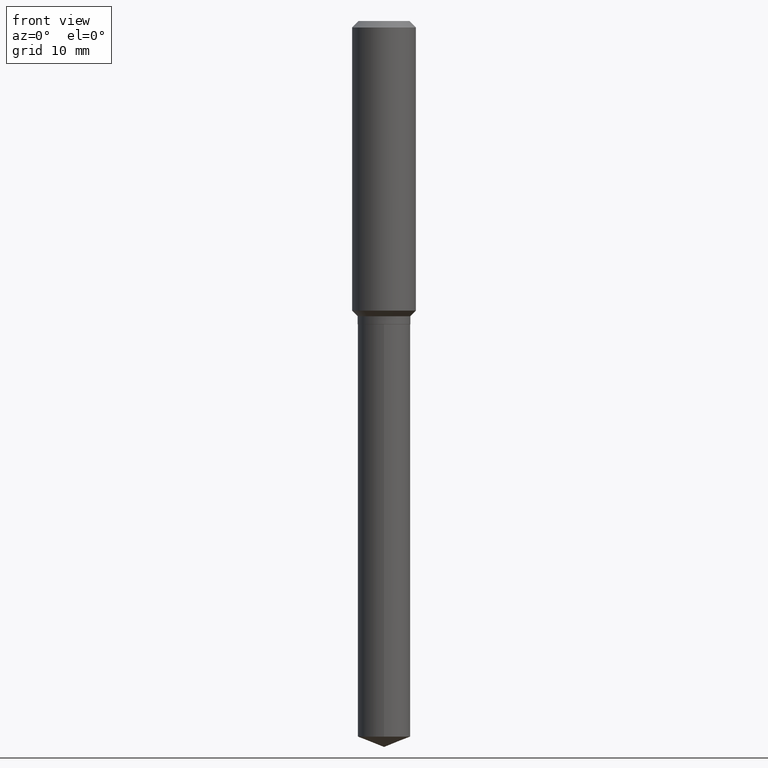
[diagram: clean part render]
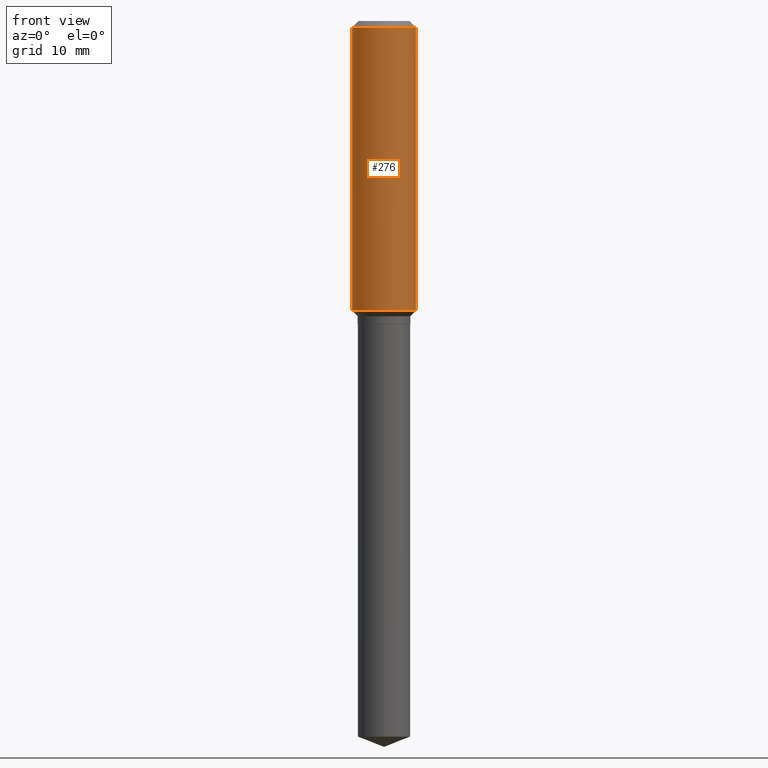
[diagram: same view with one face highlighted and labeled with its STEP entity id]
A machine part, front view. The second image highlights one B-rep face of the part: STEP entity #276.
In plain terms, the highlighted cylindrical surface (edge-blend (fillet) strip) has radius 4.0005 mm, axis along (-0, 0, 1).
Its self-contained STEP definition (entity closure, byte-faithful):
#14 = DIRECTION ( 'NONE',  ( -2.445468806185136597E-29, 3.491481338843145583E-15, 1.000000000000000000 ) ) ;
#85 = ORIENTED_EDGE ( 'NONE', *, *, #172, .F. ) ;
#94 = VERTEX_POINT ( 'NONE', #297 ) ;
#127 = CIRCLE ( 'NONE', #260, 0.1575000000000000011 ) ;
#152 = VECTOR ( 'NONE', #237, 39.37007874015748143 ) ;
#161 = CARTESIAN_POINT ( 'NONE',  ( 0.1575000000000001676, -6.090540047477979887E-15, -1.429400000000000004 ) ) ;
#172 = EDGE_CURVE ( 'NONE', #236, #420, #264, .T. ) ;
#176 = CIRCLE ( 'NONE', #218, 0.1575000000000001676 ) ;
#187 = CARTESIAN_POINT ( 'NONE',  ( 7.703226739483228723E-31, -1.099816621735597661E-16, -0.03150000000000019451 ) ) ;
#190 = CARTESIAN_POINT ( 'NONE',  ( -0.1575000000000000844, 1.119104808822158392E-15, -7.747322767151481189E-30 ) ) ;
#194 = EDGE_LOOP ( 'NONE', ( #85, #241, #275, #409 ) ) ;
#202 = EDGE_CURVE ( 'NONE', #420, #94, #127, .T. ) ;
#218 = AXIS2_PLACEMENT_3D ( 'NONE', #365, #14, #240 ) ;
#236 = VERTEX_POINT ( 'NONE', #376 ) ;
#237 = DIRECTION ( 'NONE',  ( -2.445468806185136877E-29, 3.491481338843145188E-15, 1.000000000000000000 ) ) ;
#240 = DIRECTION ( 'NONE',  ( 1.000000000000000000, -6.982962677686267499E-15, 0.000000000000000000 ) ) ;
#241 = ORIENTED_EDGE ( 'NONE', *, *, #344, .T. ) ;
#260 = AXIS2_PLACEMENT_3D ( 'NONE', #187, #310, #477 ) ;
#264 = LINE ( 'NONE', #190, #487 ) ;
#275 = ORIENTED_EDGE ( 'NONE', *, *, #299, .T. ) ;
#276 = ADVANCED_FACE ( 'NONE', ( #388 ), #395, .T. ) ;
#278 = VERTEX_POINT ( 'NONE', #161 ) ;
#279 = LINE ( 'NONE', #326, #152 ) ;
#297 = CARTESIAN_POINT ( 'NONE',  ( 0.1575000000000000011, -1.209798283909146741E-15, -0.03150000000000019451 ) ) ;
#299 = EDGE_CURVE ( 'NONE', #278, #94, #279, .T. ) ;
#310 = DIRECTION ( 'NONE',  ( -2.445468806185136597E-29, 3.491481338843145583E-15, 1.000000000000000000 ) ) ;
#326 = CARTESIAN_POINT ( 'NONE',  ( 0.1575000000000000844, -1.099816621735587677E-15, 7.679978421878603638E-30 ) ) ;
#344 = EDGE_CURVE ( 'NONE', #236, #278, #176, .T. ) ;
#349 = DIRECTION ( 'NONE',  ( -2.445468806185136877E-29, 3.491481338843145188E-15, 1.000000000000000000 ) ) ;
#364 = CARTESIAN_POINT ( 'NONE',  ( -0.1575000000000000011, -1.431247735135817737E-15, -0.03150000000000019451 ) ) ;
#365 = CARTESIAN_POINT ( 'NONE',  ( 3.495553111561034173E-29, -4.990723425742393195E-15, -1.429400000000000004 ) ) ;
#376 = CARTESIAN_POINT ( 'NONE',  ( -0.1575000000000001676, -3.871618616920233225E-15, -1.429400000000000004 ) ) ;
#385 = CARTESIAN_POINT ( 'NONE',  ( 0.000000000000000000, 0.000000000000000000, 0.000000000000000000 ) ) ;
#388 = FACE_OUTER_BOUND ( 'NONE', #194, .T. ) ;
#390 = DIRECTION ( 'NONE',  ( 1.000000000000000000, -6.982962677686267499E-15, 4.876176775795936353E-29 ) ) ;
#395 = CYLINDRICAL_SURFACE ( 'NONE', #399, 0.1575000000000000844 ) ;
#396 = DIRECTION ( 'NONE',  ( -2.445468806185136597E-29, 3.491481338843145583E-15, 1.000000000000000000 ) ) ;
#399 = AXIS2_PLACEMENT_3D ( 'NONE', #385, #396, #390 ) ;
#409 = ORIENTED_EDGE ( 'NONE', *, *, #202, .F. ) ;
#420 = VERTEX_POINT ( 'NONE', #364 ) ;
#477 = DIRECTION ( 'NONE',  ( 1.000000000000000000, -6.982962677686265922E-15, 0.000000000000000000 ) ) ;
#487 = VECTOR ( 'NONE', #349, 39.37007874015748143 ) ;